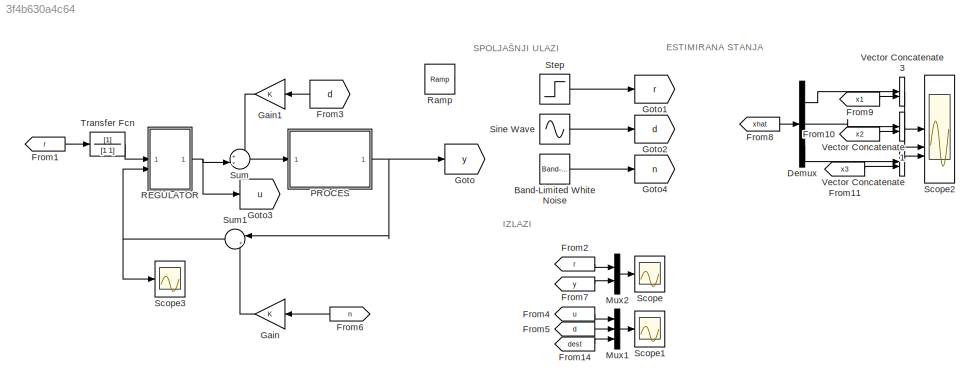
MODEL slx_3f4b630a4c64
KIND model
CONFIG AbsTol = auto
CONFIG EnableMultiTasking = off
CONFIG FixedStep = auto
CONFIG MaxStep = auto
CONFIG MinStep = auto
CONFIG RelTol = 1e-3
CONFIG SampleTimeConstraint = Unconstrained
CONFIG SolverName = VariableStepAuto
CONFIG StartTime = 0.0
CONFIG StopTime = 20
BLOCK [Reference] Band-Limited White Noise  REF=simulink/Sources/Band-Limited
White Noise
  SourceBlock = simulink/Sources/Band-Limited\nWhite Noise
  SourceType = Band-Limited White Noise.
BLOCK [Demux] Demux
  Outputs = 3
BLOCK [From] From1
  GotoTag = r
BLOCK [From] From10
  GotoTag = x2
  TagVisibility = global
BLOCK [From] From11
  GotoTag = x3
  TagVisibility = global
BLOCK [From] From14
  GotoTag = dest
  TagVisibility = global
BLOCK [From] From2
  GotoTag = r
BLOCK [From] From3
  GotoTag = d
BLOCK [From] From4
  GotoTag = u
BLOCK [From] From5
  GotoTag = d
BLOCK [From] From6
  GotoTag = n
BLOCK [From] From7
  GotoTag = y
BLOCK [From] From8
  GotoTag = xhat
  TagVisibility = global
BLOCK [From] From9
  GotoTag = x1
  TagVisibility = global
BLOCK [Gain] Gain
BLOCK [Gain] Gain1
BLOCK [Goto] Goto
  GotoTag = y
BLOCK [Goto] Goto1
  GotoTag = r
BLOCK [Goto] Goto2
  GotoTag = d
BLOCK [Goto] Goto3
  GotoTag = u
BLOCK [Goto] Goto4
  GotoTag = n
BLOCK [Mux] Mux1
  DisplayOption = bar
  Inputs = 3
BLOCK [Mux] Mux2
  DisplayOption = bar
  Inputs = 2
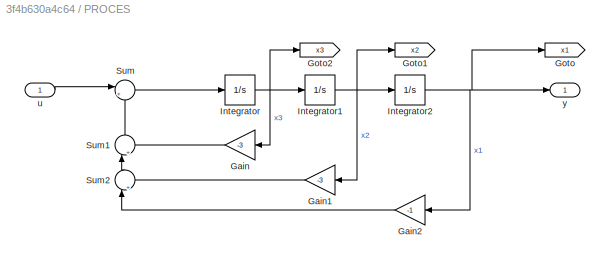
BLOCK [SubSystem] PROCES
BLOCK [Gain] PROCES/Gain
  Gain = -3
  NameLocation = top
BLOCK [Gain] PROCES/Gain1
  Gain = -3
  NameLocation = top
BLOCK [Gain] PROCES/Gain2
  Gain = -1
  NameLocation = top
BLOCK [Goto] PROCES/Goto
  GotoTag = x1
  TagVisibility = global
BLOCK [Goto] PROCES/Goto1
  GotoTag = x2
  TagVisibility = global
BLOCK [Goto] PROCES/Goto2
  GotoTag = x3
  TagVisibility = global
BLOCK [Integrator] PROCES/Integrator
  InitialCondition = ic
BLOCK [Integrator] PROCES/Integrator1
  InitialCondition = ic
BLOCK [Integrator] PROCES/Integrator2
  InitialCondition = ic
BLOCK [Sum] PROCES/Sum
  Inputs = |++
BLOCK [Sum] PROCES/Sum1
  Inputs = |++
  NameLocation = right
BLOCK [Sum] PROCES/Sum2
  Inputs = |++
  NameLocation = right
BLOCK [Inport] PROCES/u
BLOCK [Outport] PROCES/y
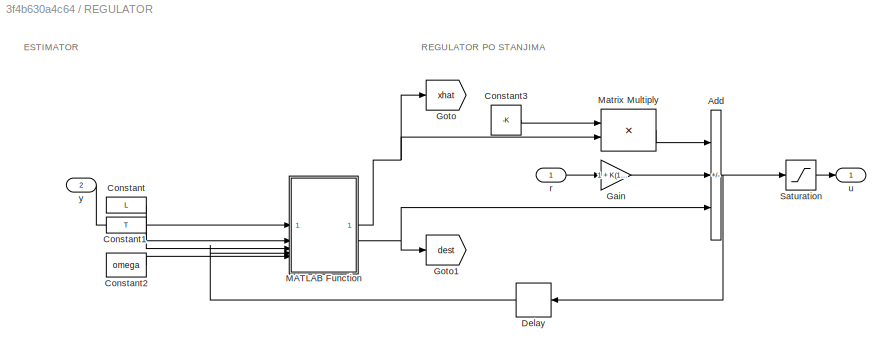
BLOCK [SubSystem] REGULATOR
BLOCK [Sum] REGULATOR/Add
  IconShape = rectangular
  Inputs = ++-
BLOCK [Constant] REGULATOR/Constant
  Value = L
  VectorParams1D = off
BLOCK [Constant] REGULATOR/Constant1
  Value = T
BLOCK [Constant] REGULATOR/Constant2
  Value = omega
BLOCK [Constant] REGULATOR/Constant3
  Value = -K
  VectorParams1D = off
BLOCK [Delay] REGULATOR/Delay
  DelayLength = 1
  InputPortMap = u0
  NameLocation = top
BLOCK [Gain] REGULATOR/Gain
  Gain = 1 + K(1, 1)
BLOCK [Goto] REGULATOR/Goto
  GotoTag = xhat
  TagVisibility = global
BLOCK [Goto] REGULATOR/Goto1
  GotoTag = dest
  TagVisibility = global
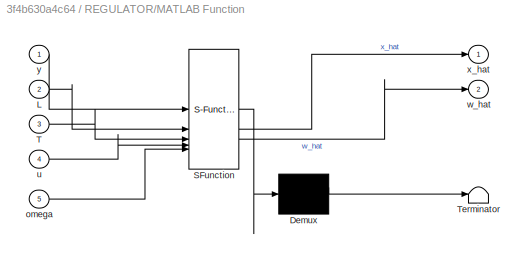
BLOCK [SubSystem] REGULATOR/MATLAB Function
  ErrorFcn = Stateflow.Translate.translate
  PermitHierarchicalResolution = ExplicitOnly
  SFBlockType = MATLAB Function
  TreatAsAtomicUnit = on
BLOCK [Demux] REGULATOR/MATLAB Function/ Demux 
  Outputs = 1
BLOCK [S-Function] REGULATOR/MATLAB Function/ SFunction 
  EnableBusSupport = off
  FunctionName = sf_sfun
  PortCounts = [5 3]
  SFcnIsStateOwnerBlock = off
  SFunctionDeploymentMode = off
  Tag = Stateflow S-Function 2
BLOCK [Terminator] REGULATOR/MATLAB Function/ Terminator 
BLOCK [Inport] REGULATOR/MATLAB Function/L
  Port = 2
BLOCK [Inport] REGULATOR/MATLAB Function/T
  Port = 3
BLOCK [Inport] REGULATOR/MATLAB Function/omega
  Port = 5
BLOCK [Inport] REGULATOR/MATLAB Function/u
  Port = 4
BLOCK [Outport] REGULATOR/MATLAB Function/w_hat
  Port = 2
BLOCK [Outport] REGULATOR/MATLAB Function/x_hat
BLOCK [Inport] REGULATOR/MATLAB Function/y
BLOCK [Product] REGULATOR/Matrix Multiply
  Multiplication = Matrix(*)
BLOCK [Saturate] REGULATOR/Saturation
  Commented = through
  LowerLimit = -umax
  UpperLimit = umax
BLOCK [Inport] REGULATOR/r
BLOCK [Outport] REGULATOR/u
BLOCK [Inport] REGULATOR/y
  Port = 2
BLOCK [Reference] Ramp  REF=simulink/Sources/Ramp
  SourceBlock = simulink/Sources/Ramp
  SourceType = Ramp
BLOCK [Scope] Scope
  ActiveDisplayYMaximum = 1.2391254395925153
  ActiveDisplayYMinimum = -0.13768060439916835
  Floating = off
  GraphicalSettings = {"Style":{"BackgroundColor":[0.12941176470588237,0.12941176470588237,0.12941176470588237],"AxesColor":[0.07058823529411765,0.07058823529411765,0.07058823529411765],"LabelsColor":[0.8509803921568627,0.8509803921568627,0.8509803921568627],"PreserveColors":false,"Visible":[true,true],"LineStyle":["-","-"],"LineWidth":[2,2],"BarWidth":[0.9,0.9],"LineColor":["auto","auto"],"LineFaceAlpha":[1,1],"LineEd...<+2360ch>
  MultipleDisplayCache = [{"MaxYLimMag":1.2391254395925153,"MaxYLimReal":1.2391254395925153,"MinYLimMag":0,"MinYLimReal":-0.13768060439916835,"PlotAsMagnitudePhase":false,"ShowGrid":true,"ShowLegend":true,"Title":"%<SignalLabel>","YLabel":""}]
  NumInputPorts = 1
  ScopeFrameLocation = window
  ShowLegend = on
  WasSavedAsWebScope = on
  WindowPosition = [198.000000,125.000000,1330.000000,691.000000,]
BLOCK [Scope] Scope1
  ActiveDisplayYMaximum = 30.491106506946075
  ActiveDisplayYMinimum = -4.4199585625146725
  DataLoggingVariableName = ScopeData1
  Floating = off
  GraphicalSettings = {"Style":{"BackgroundColor":[0.12941176470588237,0.12941176470588237,0.12941176470588237],"AxesColor":[0.07058823529411765,0.07058823529411765,0.07058823529411765],"LabelsColor":[0.8509803921568627,0.8509803921568627,0.8509803921568627],"PreserveColors":false,"Visible":[true,true,true],"LineStyle":["-","-","-"],"LineWidth":[2,2,1.5],"BarWidth":[0.9,0.9,0.9],"LineColor":["auto","auto","auto"],"Line...<+2232ch>
  MultipleDisplayCache = [{"MaxYLimMag":30.491106506946075,"MaxYLimReal":30.491106506946075,"MinYLimMag":0,"MinYLimReal":-4.4199585625146725,"PlotAsMagnitudePhase":false,"ShowGrid":true,"ShowLegend":true,"Title":"%<SignalLabel>","YLabel":""}]
  NumInputPorts = 1
  ScopeFrameLocation = window
  ShowLegend = on
  WasSavedAsWebScope = on
  WindowPosition = [0.000000,32.000000,1920.000000,1017.000000,]
BLOCK [Scope] Scope2
  ActiveDisplayYMaximum = 2.1794222293336483
  ActiveDisplayYMinimum = -0.25565847863628133
  DataLoggingVariableName = ScopeData2
  Floating = off
  GraphicalSettings = {"Style":{"BackgroundColor":[0.12941176470588237,0.12941176470588237,0.12941176470588237],"AxesColor":[0.07058823529411765,0.07058823529411765,0.07058823529411765],"LabelsColor":[0.8509803921568627,0.8509803921568627,0.8509803921568627],"PreserveColors":false,"Visible":[true,true,true,true,true,true],"LineStyle":["-","-","-","-","-","-"],"LineWidth":[2,2,1.5,1.5,1.5,1.5],"BarWidth":[0.9,0.9,0.9,0....<+3182ch>
  LayoutDimensionsString = [3, 1]
  MultipleDisplayCache = [{"MaxYLimMag":2.1794222293336483,"MaxYLimReal":2.1794222293336483,"MinYLimMag":0,"MinYLimReal":-0.25565847863628133,"PlotAsMagnitudePhase":false,"ShowGrid":true,"ShowLegend":true,"Title":"%<SignalLabel>","YLabel":""},{"MaxYLimMag":0.77694558027727756,"MaxYLimReal":0.77694558027727756,"MinYLimMag":0,"MinYLimReal":-0.77197752013082532,"PlotAsMagnitudePhase":false,"ShowGrid":true,"ShowLegend":true,"...<+253ch>
  NumInputPorts = 3
  ScopeFrameLocation = window
  ShowLegend = on
  WasSavedAsWebScope = on
  WindowPosition = [1.000000,41.000000,1920.000000,1017.000000,]
BLOCK [Scope] Scope3
  ActiveDisplayYMaximum = 2.5830484237670013
  ActiveDisplayYMinimum = -0.68744608514374428
  DataLoggingVariableName = ScopeData3
  Floating = off
  GraphicalSettings = {"Style":{"BackgroundColor":[0.12941176470588237,0.12941176470588237,0.12941176470588237],"AxesColor":[0.07058823529411765,0.07058823529411765,0.07058823529411765],"LabelsColor":[0.8509803921568627,0.8509803921568627,0.8509803921568627],"PreserveColors":false,"Visible":[true],"LineStyle":["-"],"LineWidth":[2],"BarWidth":[0.9],"LineColor":["auto"],"LineFaceAlpha":[1],"LineEdgeAlpha":[1],"Marker":["...<+2272ch>
  MultipleDisplayCache = [{"MaxYLimMag":2.5830484237670013,"MaxYLimReal":2.5830484237670013,"MinYLimMag":0,"MinYLimReal":-0.68744608514374428,"PlotAsMagnitudePhase":false,"ShowGrid":true,"ShowLegend":true,"Title":"%<SignalLabel>","YLabel":""}]
  NumInputPorts = 1
  ScopeFrameLocation = window
  ShowLegend = on
  WasSavedAsWebScope = on
  WindowPosition = [198.000000,125.000000,1330.000000,691.000000,]
BLOCK [Sin] Sine Wave
  Frequency = omega
  SampleTime = 0
BLOCK [Step] Step
  SampleTime = 0
  Time = 2
BLOCK [Sum] Sum
  Inputs = ++|
BLOCK [Sum] Sum1
  Inputs = |++
BLOCK [TransferFcn] Transfer Fcn
  Commented = through
  Denominator = [1 1]
BLOCK [Concatenate] Vector Concatenate
BLOCK [Concatenate] Vector Concatenate1
BLOCK [Concatenate] Vector Concatenate3
ANNOTATION (root): ESTIMIRANA STANJA
ANNOTATION (root): IZLAZI
ANNOTATION (root): SPOLJAŠNJI ULAZI
ANNOTATION REGULATOR: ESTIMATOR
ANNOTATION REGULATOR: REGULATOR PO STANJIMA
LINE Band-Limited White Noise:1 -> Goto4:1
LINE Demux:1 -> Vector Concatenate3:1
LINE Demux:2 -> Vector Concatenate1:1
LINE Demux:3 -> Vector Concatenate:1
LINE From10:1 -> Vector Concatenate1:2
LINE From11:1 -> Vector Concatenate:2
LINE From14:1 -> Mux1:3
LINE From1:1 -> Transfer Fcn:1
LINE From2:1 -> Mux2:1
LINE From3:1 -> Gain1:1
LINE From4:1 -> Mux1:1
LINE From5:1 -> Mux1:2
LINE From6:1 -> Gain:1
LINE From7:1 -> Mux2:2
LINE From8:1 -> Demux:1
LINE From9:1 -> Vector Concatenate3:2
LINE Gain1:1 -> Sum:1
LINE Gain:1 -> Sum1:2
LINE Mux1:1 -> Scope1:1
LINE Mux2:1 -> Scope:1
LINE PROCES/Gain1:1 -> PROCES/Sum2:2
LINE PROCES/Gain2:1 -> PROCES/Sum2:1
LINE PROCES/Gain:1 -> PROCES/Sum1:2
NET PROCES/Integrator1:1 -> PROCES/Gain1:1, PROCES/Goto1:1, PROCES/Integrator2:1
NET PROCES/Integrator2:1 -> PROCES/Gain2:1, PROCES/Goto:1, PROCES/y:1
NET PROCES/Integrator:1 -> PROCES/Gain:1, PROCES/Goto2:1, PROCES/Integrator1:1
LINE PROCES/Sum1:1 -> PROCES/Sum:2
LINE PROCES/Sum2:1 -> PROCES/Sum1:1
LINE PROCES/Sum:1 -> PROCES/Integrator:1
LINE PROCES/u:1 -> PROCES/Sum:1
NET PROCES:1 -> Goto:1, Sum1:1
NET REGULATOR/Add:1 -> REGULATOR/Delay:1, REGULATOR/Saturation:1
LINE REGULATOR/Constant1:1 -> REGULATOR/MATLAB Function:3
LINE REGULATOR/Constant2:1 -> REGULATOR/MATLAB Function:5
LINE REGULATOR/Constant3:1 -> REGULATOR/Matrix Multiply:1
LINE REGULATOR/Constant:1 -> REGULATOR/MATLAB Function:2
LINE REGULATOR/Delay:1 -> REGULATOR/MATLAB Function:4
LINE REGULATOR/Gain:1 -> REGULATOR/Add:2
NET REGULATOR/MATLAB Function:1 -> REGULATOR/Goto:1, REGULATOR/Matrix Multiply:2
NET REGULATOR/MATLAB Function:2 -> REGULATOR/Add:3, REGULATOR/Goto1:1
LINE REGULATOR/Matrix Multiply:1 -> REGULATOR/Add:1
LINE REGULATOR/Saturation:1 -> REGULATOR/u:1
LINE REGULATOR/r:1 -> REGULATOR/Gain:1
LINE REGULATOR/y:1 -> REGULATOR/MATLAB Function:1
NET REGULATOR:1 -> Goto3:1, Sum:2
LINE Sine Wave:1 -> Goto2:1
LINE Step:1 -> Goto1:1
NET Sum1:1 -> REGULATOR:2, Scope3:1
LINE Sum:1 -> PROCES:1
LINE Transfer Fcn:1 -> REGULATOR:1
LINE Vector Concatenate1:1 -> Scope2:2
LINE Vector Concatenate3:1 -> Scope2:1
LINE Vector Concatenate:1 -> Scope2:3
note: NET lines group one-source signal fan-out (src -> all destinations, sorted); 1:1 wires keep LINE
CHART REGULATOR/MATLAB Function states=1 transitions=1
  STATE_LABEL 'eML_blk_kernel()'
  STATE_LABEL 'SCRIPT:\nfunction [x_hat, w_hat] = fcn(y, L, T, u, omega)\npersistent x1hat\npersistent x2hat\npersistent x3hat\npersistent w1hat\npersistent w2hat\n\nif(isempty(x1hat))\n    x1hat = 0;\nend\nif(isempty(x2hat))\n    x2hat = 0;\nend\nif(isempty(x3hat))\n    x3hat = 0;\nend\nif(isempty(w1hat))\n    w1hat = 0;\nend\nif(isempty(w2hat))\n    w2hat = 0;\nend\ne = y - x1hat;\n\nx1hat_n = x1hat + T * (x2hat + L(1, 1) * e);\nx2hat_...<+352ch>'
CHART  states=0 transitions=0
